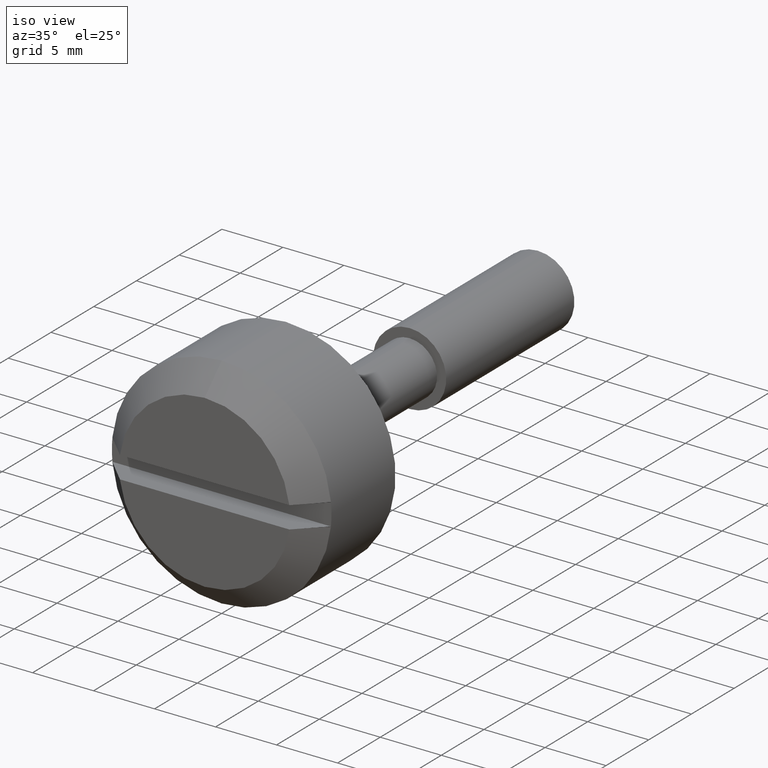
[diagram: clean part render]
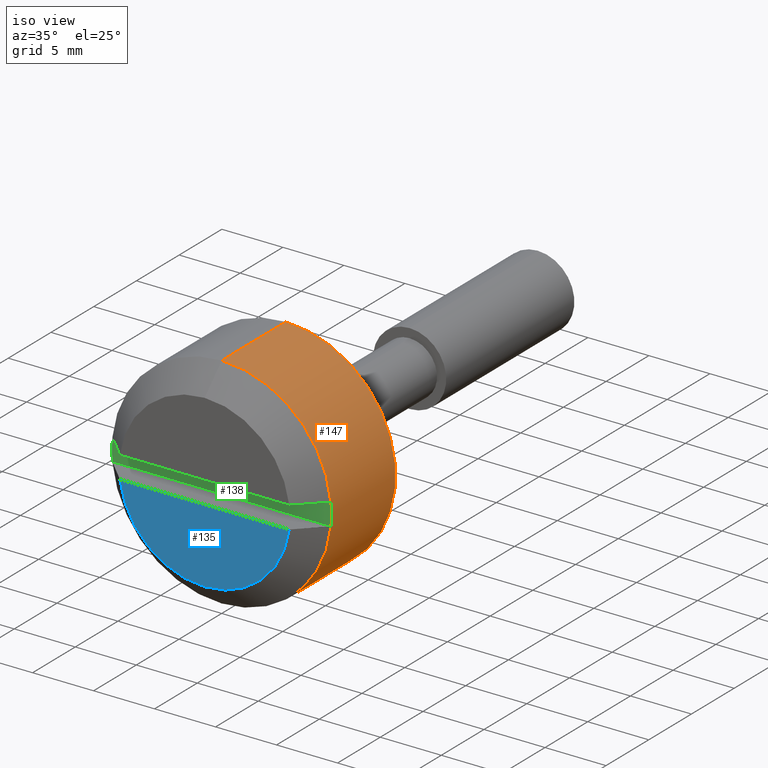
[diagram: same view with three faces highlighted in distinct colors, each labeled with its STEP entity id]
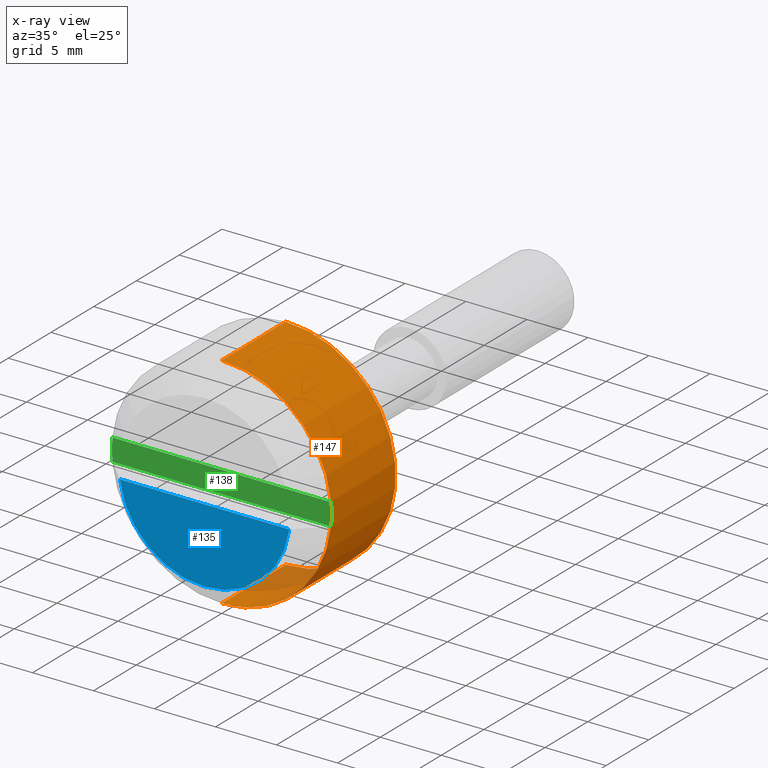
[diagram: x-ray of the same camera — body ghosted, the three highlighted faces saturated]
A machine part, iso view with three faces highlighted in distinct colors.
The next image is the same camera in x-ray (body ghosted, the three faces saturated) — at least one of them is partly hidden behind the body in this view.
Their STEP definitions:

[orange] entity #147 — the highlighted cylindrical surface (partial cylindrical patch) has radius 9 mm, axis along (0, -1, -0).
#147=ADVANCED_FACE('',(#510),#509,.T.);
#509=CYLINDRICAL_SURFACE('',#774,9.00000000000E+00);
#510=FACE_OUTER_BOUND('',#775,.T.);
#771=CARTESIAN_POINT('',(-1.00200000000E+03,0.00000000000E+00,0.00000000000E+00));
#772=DIRECTION('',(-1.00000000000E+00,-0.00000000000E+00,-0.00000000000E+00));
#773=DIRECTION('',(-0.00000000000E+00,-0.00000000000E+00,1.00000000000E+00));
#774=AXIS2_PLACEMENT_3D('',#771,#772,#773);
#775=EDGE_LOOP('',(#996,#997,#998,#999));
#996=ORIENTED_EDGE('',*,*,#1113,.T.);
#997=ORIENTED_EDGE('',*,*,#1119,.T.);
#998=ORIENTED_EDGE('',*,*,#1121,.F.);
#999=ORIENTED_EDGE('',*,*,#1120,.F.);
#1113=EDGE_CURVE('',#1669,#1668,#1688,.T.);
#1119=EDGE_CURVE('',#1668,#1718,#1726,.T.);
#1120=EDGE_CURVE('',#1669,#1719,#1732,.T.);
#1121=EDGE_CURVE('',#1719,#1718,#1738,.T.);
#1668=VERTEX_POINT('',#2133);
#1669=VERTEX_POINT('',#2134);
#1688=CIRCLE('',#2146,9.00000000000E+00);
#1718=VERTEX_POINT('',#2155);
#1719=VERTEX_POINT('',#2156);
#1726=(BOUNDED_CURVE() B_SPLINE_CURVE(1,(#2161,#2162),.UNSPECIFIED.,.F.,.F.) B_SPLINE_CURVE_WITH_KNOTS((2,2),(8.33333320912E-02,9.16666667486E-01),.UNSPECIFIED.) CURVE() GEOMETRIC_REPRESENTATION_ITEM() RATIONAL_B_SPLINE_CURVE((1.00000000000E+00,1.00000000000E+00)) REPRESENTATION_ITEM('') );
#1732=(BOUNDED_CURVE() B_SPLINE_CURVE(1,(#2163,#2164),.UNSPECIFIED.,.F.,.F.) B_SPLINE_CURVE_WITH_KNOTS((2,2),(8.33333333333E-02,9.16666666667E-01),.UNSPECIFIED.) CURVE() GEOMETRIC_REPRESENTATION_ITEM() RATIONAL_B_SPLINE_CURVE((7.50000000000E-01,7.50000000000E-01)) REPRESENTATION_ITEM('') );
#1738=CIRCLE('',#2168,9.00000000000E+00);
#2133=CARTESIAN_POINT('',(-2.50000000000E+00,2.07241631263E-15,9.00000000000E+00));
#2134=CARTESIAN_POINT('',(-2.50000000000E+00,0.00000000000E+00,-9.00000000000E+00));
#2143=CARTESIAN_POINT('',(-2.50000000000E+00,0.00000000000E+00,0.00000000000E+00));
#2144=DIRECTION('',(-1.00000000000E+00,0.00000000000E+00,-0.00000000000E+00));
#2145=DIRECTION('',(0.00000000000E+00,-1.22460635382E-16,-1.00000000000E+00));
#2146=AXIS2_PLACEMENT_3D('',#2143,#2144,#2145);
#2155=CARTESIAN_POINT('',(-9.99990000000E+00,0.00000000000E+00,9.00000000000E+00));
#2156=CARTESIAN_POINT('',(-9.99990000000E+00,5.92118946467E-16,-9.00000000000E+00));
#2161=CARTESIAN_POINT('',(-2.49999998882E+00,0.00000000000E+00,9.00000000000E+00));
#2162=CARTESIAN_POINT('',(-9.99990000737E+00,0.00000000000E+00,9.00000000000E+00));
#2163=CARTESIAN_POINT('',(-2.50000000000E+00,-5.92118946467E-16,-9.00000000000E+00));
#2164=CARTESIAN_POINT('',(-9.99990000000E+00,-5.92118946467E-16,-9.00000000000E+00));
#2165=CARTESIAN_POINT('',(-9.99990000000E+00,0.00000000000E+00,0.00000000000E+00));
#2166=DIRECTION('',(-1.00000000000E+00,0.00000000000E+00,0.00000000000E+00));
#2167=DIRECTION('',(0.00000000000E+00,-1.22460635382E-16,1.00000000000E+00));
#2168=AXIS2_PLACEMENT_3D('',#2165,#2166,#2167);

[blue] entity #135 — the highlighted planar face has unit normal (0, 1, 0).
#135=ADVANCED_FACE('',(#390),#389,.F.);
#389=PLANE('',#702);
#390=FACE_OUTER_BOUND('',#703,.T.);
#699=CARTESIAN_POINT('',(-1.19999000000E+01,-8.33028210807E+00,-7.61000000000E+00));
#700=DIRECTION('',(1.00000000000E+00,0.00000000000E+00,0.00000000000E+00));
#701=DIRECTION('',(0.00000000000E+00,1.00000000000E+00,0.00000000000E+00));
#702=AXIS2_PLACEMENT_3D('',#699,#700,#701);
#703=EDGE_LOOP('',(#950,#951,#952));
#950=ORIENTED_EDGE('',*,*,#1096,.T.);
#951=ORIENTED_EDGE('',*,*,#1097,.T.);
#952=ORIENTED_EDGE('',*,*,#1098,.F.);
#1096=EDGE_CURVE('',#1574,#1575,#1576,.T.);
#1097=EDGE_CURVE('',#1575,#1582,#1583,.T.);
#1098=EDGE_CURVE('',#1574,#1582,#1589,.T.);
#1574=VERTEX_POINT('',#2071);
#1575=VERTEX_POINT('',#2072);
#1576=CIRCLE('',#2076,7.00000000000E+00);
#1582=VERTEX_POINT('',#2077);
#1583=CIRCLE('',#2081,7.00000000000E+00);
#1589=LINE('',#2082,#2083);
#2071=CARTESIAN_POINT('',(-1.19999000000E+01,6.94190175672E+00,-9.00000000000E-01));
#2072=CARTESIAN_POINT('',(-1.19999000000E+01,1.77635683940E-15,-7.00000000000E+00));
#2073=CARTESIAN_POINT('',(-1.19999000000E+01,0.00000000000E+00,0.00000000000E+00));
#2074=DIRECTION('',(-1.00000000000E+00,0.00000000000E+00,0.00000000000E+00));
#2075=DIRECTION('',(-0.00000000000E+00,9.91700250960E-01,-1.28571428571E-01));
#2076=AXIS2_PLACEMENT_3D('',#2073,#2074,#2075);
#2077=CARTESIAN_POINT('',(-1.19999000000E+01,-6.94190175672E+00,-9.00000000000E-01));
#2078=CARTESIAN_POINT('',(-1.19999000000E+01,0.00000000000E+00,0.00000000000E+00));
#2079=DIRECTION('',(-1.00000000000E+00,0.00000000000E+00,0.00000000000E+00));
#2080=DIRECTION('',(-0.00000000000E+00,9.91700250960E-01,-1.28571428571E-01));
#2081=AXIS2_PLACEMENT_3D('',#2078,#2079,#2080);
#2082=CARTESIAN_POINT('',(-1.19999000000E+01,6.94190175672E+00,-9.00000000000E-01));
#2083=VECTOR('',#2084,1.38838035134E+01);
#2084=DIRECTION('',(0.00000000000E+00,-1.00000000000E+00,0.00000000000E+00));

[green] entity #138 — the highlighted planar face has unit normal (0, -1, 0).
#138=ADVANCED_FACE('',(#420),#419,.T.);
#419=PLANE('',#717);
#420=FACE_OUTER_BOUND('',#718,.T.);
#714=CARTESIAN_POINT('',(-1.00000000000E+01,-1.08542890185E+01,-1.08000000000E+00));
#715=DIRECTION('',(-1.00000000000E+00,0.00000000000E+00,0.00000000000E+00));
#716=DIRECTION('',(0.00000000000E+00,0.00000000000E+00,1.00000000000E+00));
#717=AXIS2_PLACEMENT_3D('',#714,#715,#716);
#718=EDGE_LOOP('',(#960,#961,#962,#963));
#960=ORIENTED_EDGE('',*,*,#1102,.F.);
#961=ORIENTED_EDGE('',*,*,#1105,.T.);
#962=ORIENTED_EDGE('',*,*,#1106,.T.);
#963=ORIENTED_EDGE('',*,*,#1107,.T.);
#1102=EDGE_CURVE('',#1616,#1617,#1618,.T.);
#1105=EDGE_CURVE('',#1616,#1636,#1637,.T.);
#1106=EDGE_CURVE('',#1636,#1643,#1644,.T.);
#1107=EDGE_CURVE('',#1643,#1617,#1650,.T.);
#1616=VERTEX_POINT('',#2099);
#1617=VERTEX_POINT('',#2100);
#1618=LINE('',#2101,#2102);
#1636=VERTEX_POINT('',#2112);
#1637=CIRCLE('',#2116,8.99990000000E+00);
#1643=VERTEX_POINT('',#2117);
#1644=LINE('',#2118,#2119);
#1650=CIRCLE('',#2124,8.99990000000E+00);
#2099=CARTESIAN_POINT('',(-1.00000000000E+01,8.95478643017E+00,9.00000000000E-01));
#2100=CARTESIAN_POINT('',(-1.00000000000E+01,-8.95478643017E+00,9.00000000000E-01));
#2101=CARTESIAN_POINT('',(-1.00000000000E+01,8.95478643017E+00,9.00000000000E-01));
#2102=VECTOR('',#2103,1.79095728603E+01);
#2103=DIRECTION('',(0.00000000000E+00,-1.00000000000E+00,0.00000000000E+00));
#2112=CARTESIAN_POINT('',(-1.00000000000E+01,8.95478643017E+00,-9.00000000000E-01));
#2113=CARTESIAN_POINT('',(-1.00000000000E+01,0.00000000000E+00,0.00000000000E+00));
#2114=DIRECTION('',(-1.00000000000E+00,0.00000000000E+00,0.00000000000E+00));
#2115=DIRECTION('',(-0.00000000000E+00,-0.00000000000E+00,-1.00000000000E+00));
#2116=AXIS2_PLACEMENT_3D('',#2113,#2114,#2115);
#2117=CARTESIAN_POINT('',(-1.00000000000E+01,-8.95478643017E+00,-9.00000000000E-01));
#2118=CARTESIAN_POINT('',(-1.00000000000E+01,8.95478643017E+00,-9.00000000000E-01));
#2119=VECTOR('',#2120,1.79095728603E+01);
#2120=DIRECTION('',(0.00000000000E+00,-1.00000000000E+00,0.00000000000E+00));
#2121=CARTESIAN_POINT('',(-1.00000000000E+01,0.00000000000E+00,0.00000000000E+00));
#2122=DIRECTION('',(-1.00000000000E+00,0.00000000000E+00,0.00000000000E+00));
#2123=DIRECTION('',(-0.00000000000E+00,-0.00000000000E+00,-1.00000000000E+00));
#2124=AXIS2_PLACEMENT_3D('',#2121,#2122,#2123);